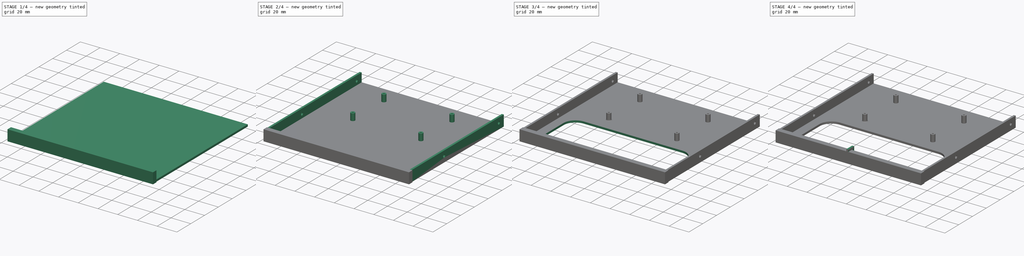
[diagram: build sequence overview — one tinted view per stage of 4, left to right]
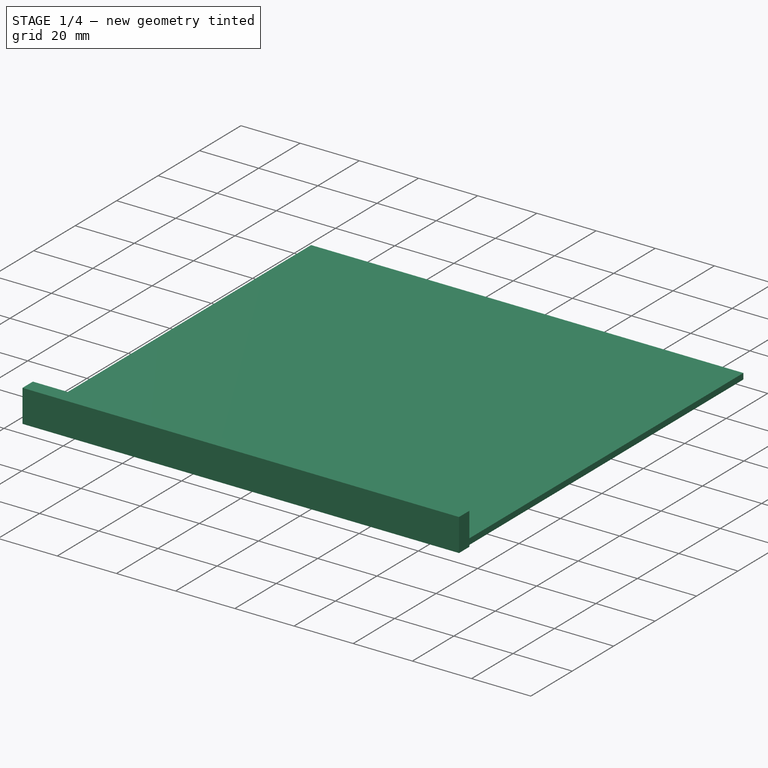
[diagram: stage 1 of 4 — iso view after this stage's code; geometry added in this stage tinted green]
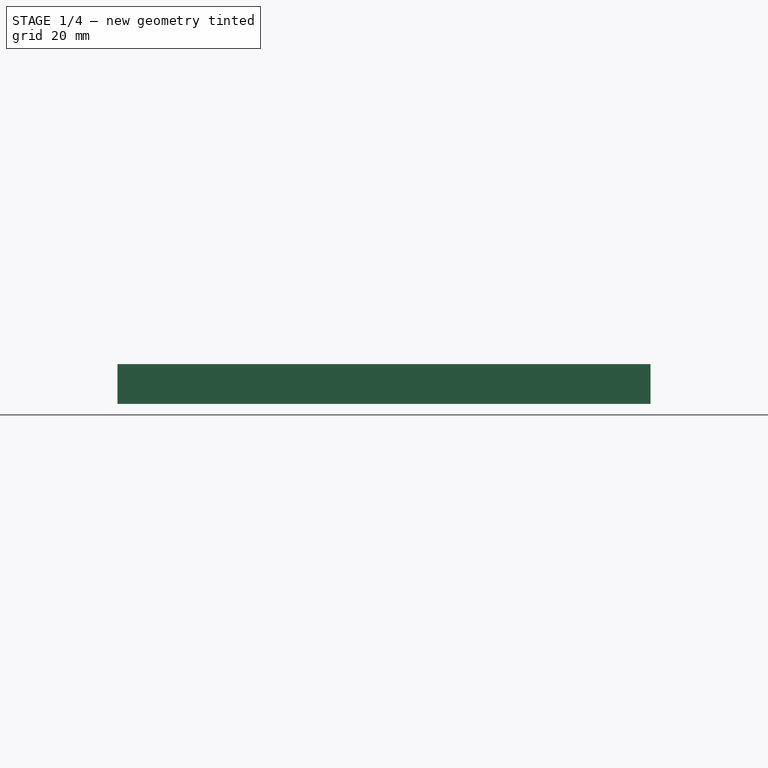
[diagram: stage 1 of 4 — front view after this stage's code; geometry added in this stage tinted green]
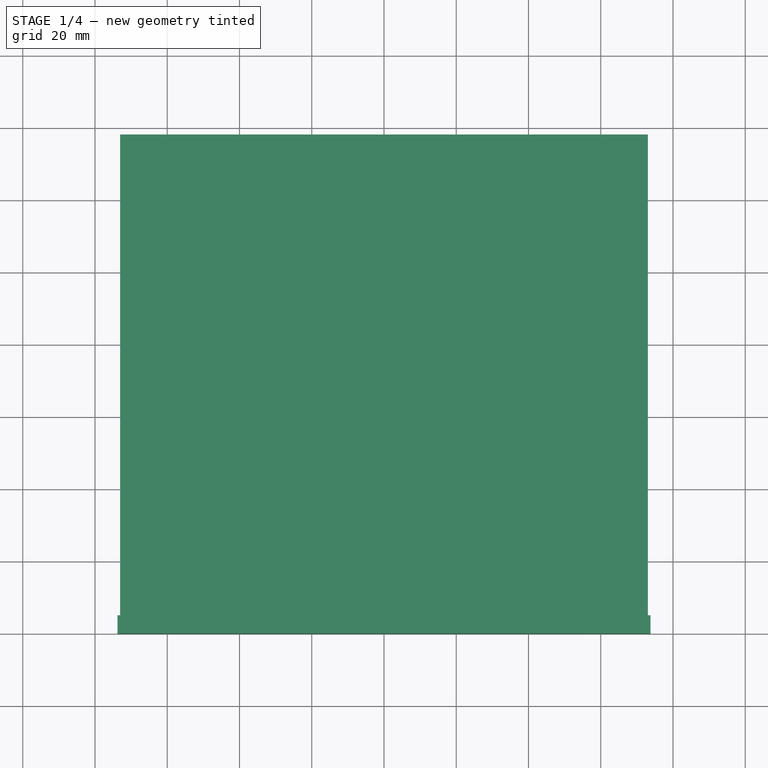
[diagram: stage 1 of 4 — top view after this stage's code; geometry added in this stage tinted green]
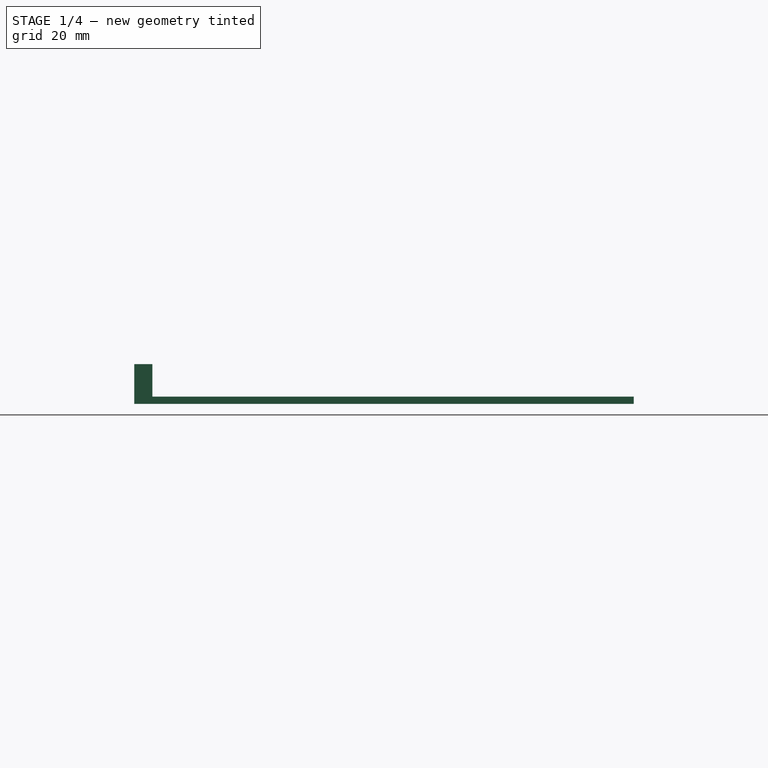
[diagram: stage 1 of 4 — right view after this stage's code; geometry added in this stage tinted green]
FCSTD DOCUMENT  (FreeCAD 1.0R39109 (Git))
Label: Greaseweazle-4_Tray
License: Apache 2
objects: Sketcher::SketchObject×10, PartDesign::Pad×8, PartDesign::Pocket×2, PartDesign::Body×2, Spreadsheet::Sheet×1, PartDesign::Fillet×1, PartDesign::Hole×1
note: 58 computed .brp shape members not serialized (recipe doc carries the construction recipe); baked Part::Feature solids carry a one-line shape summary decoded from their .brp

FEATURE [Spreadsheet::Sheet] Spreadsheet
  cells = A1='Dimensions are from SFF-8500; A2='Dimension; B2='Name; C2='Value; D2='Notes; A3='A1; C3=82.55; D3='Full Height; B4='height; C4(height)==rail_height; D4='Low profile; A5='A5; B5='width; C5(width)=146.05; D5='Width; B6='hole_diameter; C6(hole_diameter)=3; D6='Mounting hole diameter; A7='A11; B7='hole_separation; C7(hole_separation)=79.24; D7='Horizontal distance between mounting hole centers; A8='A13; B8='lower_hole_voffset; C8(lower_hole_voffset)=6; D8='Lower mounting hole vertical offset from XY plane; A9='A14; B9='upper_hole_voffset; C9(upper_hole_voffset)=6; D9='Upper mounting hole vertical offset from XY plane; B10='hole_bezel_hoffset; C10(hole_bezel_hoffset)=52; D10='Offset from front of bezel to forward mounting hole, measured from 5.25" floppy; B11='bezel_edge_depth; C11(bezel_edge_depth)=5; D11='Thickness of the bevel; B12='bezel_face_depth; C12(bezel_face_depth)=3; D12='Thickness of bezel face pocket in the center; B13='bezel_edge_width; C13(bezel_face_width)=2.5; D13='thickness of the bezel edge; B14='tray_height; C14(tray_height)=2; D14='thickness of the greaseweazle mounting tray; B15='rail_width; C15(rail_width)=2; D15='thickness of the rails for the mounting holes; B16='rail_height; C16(rail_height)==upper_hole_voffset + hole_diameter + 2; D16='height of mounting rail = upper hole offset + hole_diameter + 4mm; B17='rail_depth; C17(rail_depth)==hole_separation + hole_bezel_hoffset + hole_diameter + 4; D17='depth of mounting rail = hole separation + bezel_hole_offset + hole_diameter + 4mm; B18='bezel_width; C18(bezel_width)=147.5; D18='width of bezel; B19='tray_depth; C19(tray_depth)==rail_depth + 0; D19='depth of the tray, including the bezel = rail_depth + 0mm; B21='gw_boss_dia; C21(gw_boss_dia)==2.5 * gw_hole_dia; D21='Mounting boss for greaseweazle = 2.5x the hole diameter; B22='gw_hole_dia; C22(gw_hole_dia)=1.7; D22='Screw hole for greaseweazle; B23='gw_hole_y_dist; C23(gw_hole_y_dist)=45; B24='gw_hole_x_dist; C24(gw_hole_x_dist)=69; B25='gw_rear_offset; C25(gw_rear_offset)==rail_depth - 20; D25='Offset of GW relative to rail length; B26='gw_boss_height; C26(gw_boss_height)=7; D26='Height of mounting boss; B28='mat_hole_depth; C28(mat_hole_depth)=25; B29='mat_hole_width; C29(mat_hole_width)=100; B30='mat_hole_y_offset; C30(mat_hole_y_offset)=10; B31='mat_hole_radius; C31(mat_hole_radius)=12; D31='radius of rounded corners on the mat hole
FEATURE [Sketcher::SketchObject] Sketch
  ArcFitTolerance = 1e-06
  AttachmentSupport = -> [XY_Plane]
  FullyConstrained = true
  MakeInternals = false
  MapMode = 5
  expr: Constraints[8] = Spreadsheet.width
  expr: Constraints[9] = Spreadsheet.tray_depth
  sketch-geometry (4):
    g0: LineSegment StartX=-73.025 StartY=0 StartZ=0 EndX=73.025 EndY=-3e-16 EndZ=0
    g1: LineSegment StartX=-73.025 StartY=138.24 StartZ=0 EndX=73.025 EndY=138.24 EndZ=0
    g2: LineSegment StartX=-73.025 StartY=0 StartZ=0 EndX=-73.025 EndY=138.24 EndZ=0
    g3: LineSegment StartX=73.025 StartY=-3e-16 StartZ=0 EndX=73.025 EndY=138.24 EndZ=0
  constraints (11):
    c: Symmetric(g0,g0,g-2)
    c: Coincident(g2,g0)
    c: Coincident(g2,g1)
    c: Coincident(g3,g0)
    c: Coincident(g3,g1)
    c: Vertical(g2)
    c: Vertical(g3)
    c: Horizontal(g1)
    c: DistanceX(g0,g0) = 146.05
    c: DistanceY(g2,g2) = 138.24
    c: PointOnObject(g0,g-1)
FEATURE [PartDesign::Pad] Pad
  Direction = (0,0,1)
  Length = 2
  Length2 = 10
  Profile = -> Sketch
  ReferenceAxis = -> Sketch [N_Axis]
  Refine = true
  Suppressed = false
  Type = 0
  expr: Length = Spreadsheet.tray_height
FEATURE [Sketcher::SketchObject] Sketch001
  ArcFitTolerance = 1e-06
  AttachmentSupport = -> [Pad]
  FullyConstrained = true
  MakeInternals = false
  MapMode = 5
  Placement = pos=(0,-2e-16,0) rot=(1,0,0;1.5708rad)
  expr: Constraints[8] = Spreadsheet.bezel_width
  expr: Constraints[9] = Spreadsheet.height
  sketch-geometry (4):
    g0: LineSegment StartX=-73.75 StartY=0 StartZ=0 EndX=73.75 EndY=0 EndZ=0
    g1: LineSegment StartX=-73.75 StartY=0 StartZ=0 EndX=-73.75 EndY=11 EndZ=0
    g2: LineSegment StartX=-73.75 StartY=11 StartZ=0 EndX=73.75 EndY=11 EndZ=0
    g3: LineSegment StartX=73.75 StartY=11 StartZ=0 EndX=73.75 EndY=0 EndZ=0
  constraints (11):
    c: Symmetric(g0,g0,g-2)
    c: Coincident(g1,g0)
    c: Vertical(g1)
    c: Horizontal(g2)
    c: Coincident(g3,g2)
    c: Coincident(g3,g0)
    c: Vertical(g3)
    c: PointOnObject(g0,g-1)
    c: DistanceX(g0,g0) = 147.5
    c: DistanceY(g1,g1) = 11
    c: Coincident(g1,g2)
FEATURE [PartDesign::Pad] Pad001
  BaseFeature = -> Pad
  Direction = (0,-1,0)
  Length = 5
  Length2 = 10
  Profile = -> Sketch001
  ReferenceAxis = -> Sketch001 [N_Axis]
  Refine = true
  Reversed = true
  Suppressed = false
  Type = 0
  UseCustomVector = true
  expr: Length = Spreadsheet.bezel_edge_depth
FEATURE [Sketcher::SketchObject] Sketch002
  ArcFitTolerance = 1e-06
  AttachmentSupport = -> [Pad001]
  FullyConstrained = true
  MakeInternals = false
  MapMode = 5
  Placement = pos=(0,5,0) rot=(0,0.707107,0.707107;3.14159rad)
  expr: Constraints[10] = (Spreadsheet.height - (Spreadsheet.height - 2 * Spreadsheet.bezel_edge_depth)) / 2
  expr: Constraints[8] = Spreadsheet.bezel_width - Spreadsheet.bezel_face_width * 2
  expr: Constraints[9] = Spreadsheet.height - 2 * Spreadsheet.bezel_edge_depth
  sketch-geometry (4):
    g0: LineSegment StartX=-71.25 StartY=6 StartZ=0 EndX=-71.25 EndY=5 EndZ=0
    g1: LineSegment StartX=-71.25 StartY=5 StartZ=0 EndX=71.25 EndY=5 EndZ=0
    g2: LineSegment StartX=71.25 StartY=5 StartZ=0 EndX=71.25 EndY=6 EndZ=0
    g3: LineSegment StartX=71.25 StartY=6 StartZ=0 EndX=-71.25 EndY=6 EndZ=0
  constraints (11):
    c: Coincident(g0,g1)
    c: Coincident(g1,g2)
    c: Coincident(g2,g3)
    c: Coincident(g3,g0)
    c: Vertical(g0)
    c: Vertical(g2)
    c: Horizontal(g3)
    c: Symmetric(g0,g1,g-2)
    c: DistanceX(g3,g3) = 142.5
    c: DistanceY(g0,g0) = 1
    c: Distance(g-1,g1) = 5
FEATURE [PartDesign::Pocket] Pocket
  BaseFeature = -> Pad001
  Direction = (0,-1,2e-16)
  Length = 3
  Length2 = 5
  Profile = -> Sketch002
  ReferenceAxis = -> Sketch002 [N_Axis]
  Refine = true
  Suppressed = false
  Type = 0
  expr: Length = Spreadsheet.bezel_face_depth
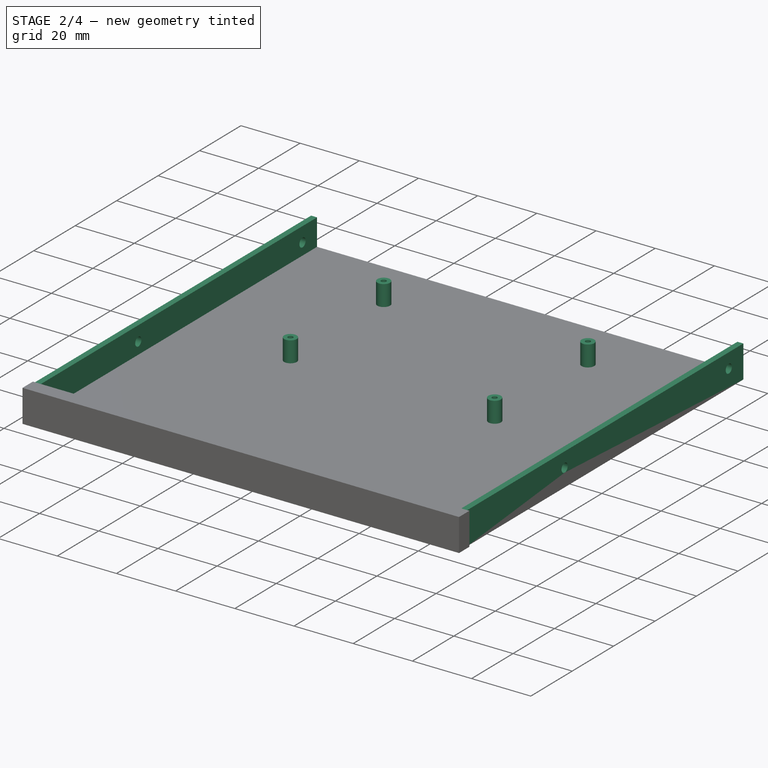
[diagram: stage 2 of 4 — iso view after this stage's code; geometry added in this stage tinted green]
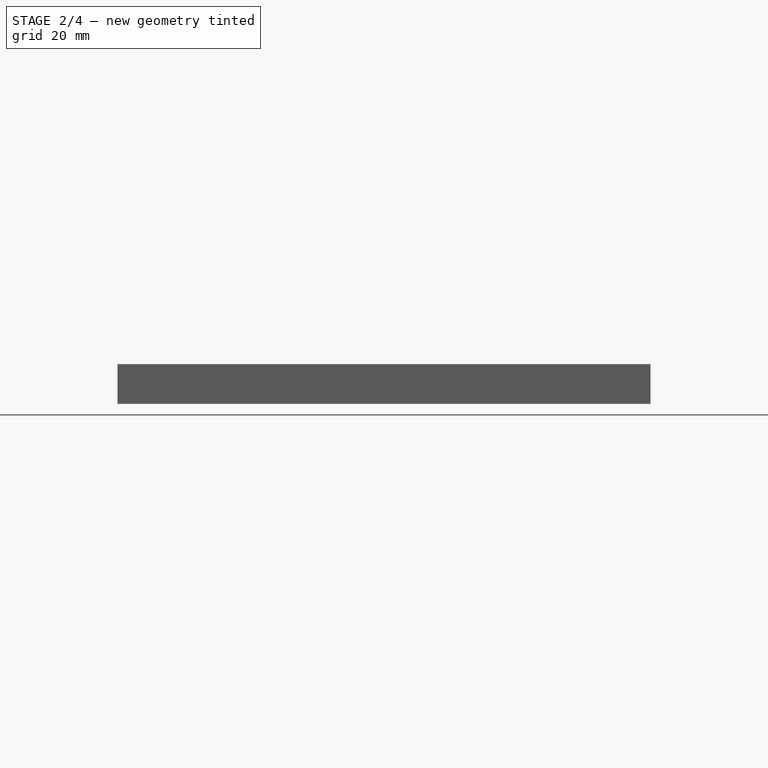
[diagram: stage 2 of 4 — front view after this stage's code; geometry added in this stage tinted green]
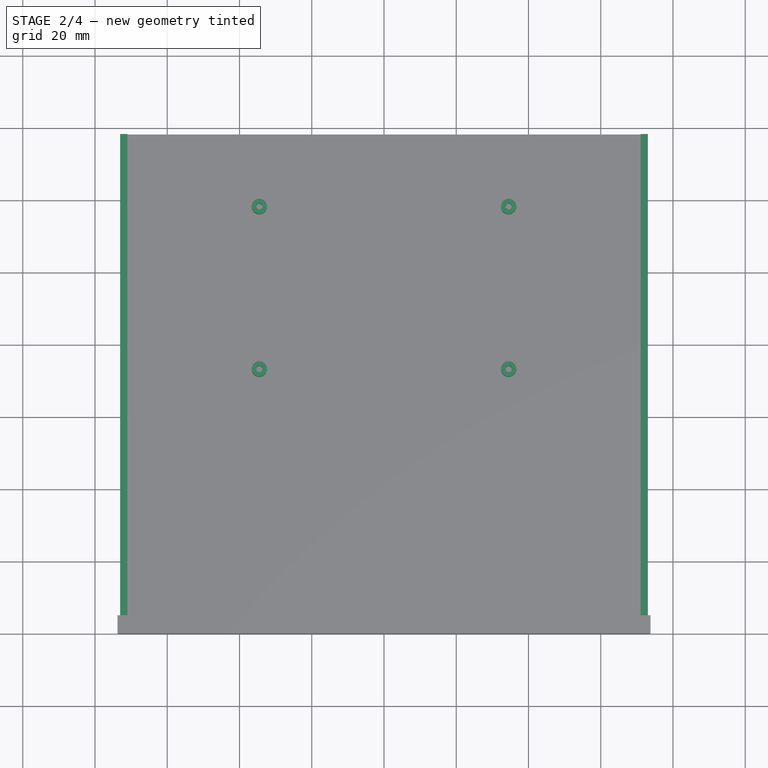
[diagram: stage 2 of 4 — top view after this stage's code; geometry added in this stage tinted green]
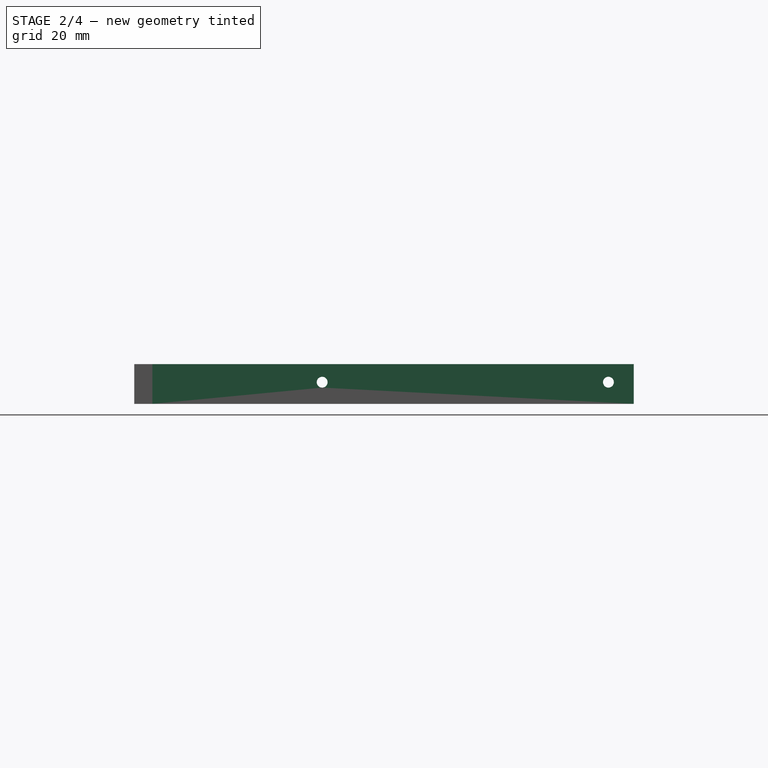
[diagram: stage 2 of 4 — right view after this stage's code; geometry added in this stage tinted green]
FEATURE [Sketcher::SketchObject] Sketch003
  ArcFitTolerance = 1e-06
  AttachmentSupport = -> [Pocket]
  FullyConstrained = true
  MakeInternals = false
  MapMode = 5
  Placement = pos=(73.025,0,0) rot=(0.57735,0.57735,0.57735;2.0944rad)
  expr: Constraints[10] = Spreadsheet.rail_height
  expr: Constraints[11] = Spreadsheet.hole_bezel_hoffset
  expr: Constraints[12] = Spreadsheet.hole_separation
  expr: Constraints[13] = Spreadsheet.upper_hole_voffset
  expr: Constraints[14] = Spreadsheet.hole_diameter
  expr: Constraints[9] = Spreadsheet.rail_depth
  sketch-geometry (6):
    g0: LineSegment StartX=0 StartY=0 StartZ=0 EndX=138.24 EndY=0 EndZ=0
    g1: LineSegment StartX=138.24 StartY=0 StartZ=0 EndX=138.24 EndY=11 EndZ=0
    g2: LineSegment StartX=138.24 StartY=11 StartZ=0 EndX=0 EndY=11 EndZ=0
    g3: LineSegment StartX=0 StartY=11 StartZ=0 EndX=0 EndY=0 EndZ=0
    g4: Circle CenterX=52 CenterY=6 CenterZ=0 NormalX=0 NormalY=0 NormalZ=1 AngleXU=0 Radius=1.5
    g5: Circle CenterX=131.24 CenterY=6 CenterZ=0 NormalX=0 NormalY=0 NormalZ=1 AngleXU=0 Radius=1.5
  constraints (17):
    c: Coincident(g0,g1)
    c: Coincident(g1,g2)
    c: Coincident(g2,g3)
    c: Coincident(g3,g0)
    c: Horizontal(g0)
    c: Horizontal(g2)
    c: Vertical(g1)
    c: Vertical(g3)
    c: Coincident(g0,g-1)
    c: DistanceX(g2,g2) = 138.24
    c: Distance(g1,g1) = 11
    c: Distance(g4,g-2) = 52
    c: DistanceX(g4,g5) = 79.24
    c: Distance(g4,g0) = 6
    c: Diameter(g5) = 3
    c: Equal(g5,g4)
    c: Horizontal(g4,g5)
FEATURE [PartDesign::Pad] Pad002
  BaseFeature = -> Pocket
  Direction = (1,0,0)
  Length = 2
  Length2 = 10
  Profile = -> Sketch003
  ReferenceAxis = -> Sketch003 [N_Axis]
  Refine = true
  Reversed = true
  Suppressed = false
  Type = 0
  expr: Length = Spreadsheet.rail_width
FEATURE [Sketcher::SketchObject] Sketch004
  ArcFitTolerance = 1e-06
  AttachmentSupport = -> [Pad002]
  FullyConstrained = true
  MakeInternals = false
  MapMode = 5
  Placement = pos=(-73.025,0,0) rot=(0.57735,-0.57735,-0.57735;2.0944rad)
  expr: Constraints[10] = Spreadsheet.hole_diameter
  expr: Constraints[12] = Spreadsheet.upper_hole_voffset
  expr: Constraints[13] = Spreadsheet.rail_height
  expr: Constraints[14] = Spreadsheet.hole_separation
  expr: Constraints[15] = Spreadsheet.rail_depth
  expr: Constraints[16] = Spreadsheet.hole_bezel_hoffset
  sketch-geometry (6):
    g0: LineSegment StartX=0 StartY=0 StartZ=0 EndX=0 EndY=11 EndZ=0
    g1: LineSegment StartX=0 StartY=11 StartZ=0 EndX=-138.24 EndY=11 EndZ=0
    g2: LineSegment StartX=-138.24 StartY=11 StartZ=0 EndX=-138.24 EndY=0 EndZ=0
    g3: LineSegment StartX=-138.24 StartY=0 StartZ=0 EndX=0 EndY=0 EndZ=0
    g4: Circle CenterX=-131.24 CenterY=6 CenterZ=0 NormalX=0 NormalY=0 NormalZ=1 AngleXU=0 Radius=1.5
    g5: Circle CenterX=-52 CenterY=6 CenterZ=0 NormalX=0 NormalY=0 NormalZ=1 AngleXU=0 Radius=1.5
  constraints (17):
    c: Coincident(g0,g1)
    c: Coincident(g1,g2)
    c: Coincident(g2,g3)
    c: Coincident(g3,g0)
    c: Vertical(g0)
    c: Vertical(g2)
    c: Horizontal(g1)
    c: Horizontal(g3)
    c: Coincident(g0,g-1)
    c: Horizontal(g5,g4)
    c: Diameter(g4) = 3
    c: Equal(g4,g5)
    c: Distance(g4,g-1) = 6
    c: Distance(g2,g2) = 11
    c: DistanceX(g4,g5) = 79.24
    c: DistanceX(g1,g1) = 138.24
    c: DistanceX(g5,g-1) = 52
FEATURE [PartDesign::Pad] Pad003
  BaseFeature = -> Pad002
  Direction = (-1,0,0)
  Length = 2
  Length2 = 10
  Profile = -> Sketch004
  ReferenceAxis = -> Sketch004 [N_Axis]
  Refine = true
  Reversed = true
  Suppressed = false
  Type = 0
  expr: Length = Spreadsheet.rail_width
FEATURE [Sketcher::SketchObject] Sketch005
  ArcFitTolerance = 1e-06
  AttachmentSupport = -> [Pad003]
  FullyConstrained = true
  MakeInternals = false
  MapMode = 5
  Placement = pos=(0,0,2) rot=(0,0,1;0rad)
  expr: Constraints[0] = Spreadsheet.gw_hole_x_dist
  expr: Constraints[16] = Spreadsheet.gw_hole_dia
  expr: Constraints[18] = Spreadsheet.gw_rear_offset
  expr: Constraints[1] = Spreadsheet.gw_hole_y_dist
  expr: Constraints[5] = Spreadsheet.gw_boss_dia
  sketch-geometry (8):
    g0: Circle CenterX=-34.5 CenterY=118.24 CenterZ=0 NormalX=0 NormalY=0 NormalZ=1 AngleXU=0 Radius=2.125
    g1: Circle CenterX=34.5 CenterY=118.24 CenterZ=0 NormalX=0 NormalY=0 NormalZ=1 AngleXU=0 Radius=2.125
    g2: Circle CenterX=-34.5 CenterY=73.24 CenterZ=0 NormalX=0 NormalY=0 NormalZ=1 AngleXU=0 Radius=2.125
    g3: Circle CenterX=34.5 CenterY=73.24 CenterZ=0 NormalX=0 NormalY=0 NormalZ=1 AngleXU=0 Radius=2.125
    g4: Circle CenterX=-34.5 CenterY=73.24 CenterZ=0 NormalX=0 NormalY=0 NormalZ=1 AngleXU=0 Radius=0.85
    g5: Circle CenterX=-34.5 CenterY=118.24 CenterZ=0 NormalX=0 NormalY=0 NormalZ=1 AngleXU=0 Radius=0.85
    g6: Circle CenterX=34.5 CenterY=118.24 CenterZ=0 NormalX=0 NormalY=0 NormalZ=1 AngleXU=0 Radius=0.85
    g7: Circle CenterX=34.5 CenterY=73.24 CenterZ=0 NormalX=0 NormalY=0 NormalZ=1 AngleXU=0 Radius=0.85
  constraints (19):
    c: DistanceX(g0,g1) = 69
    c: DistanceY(g2,g0) = 45
    c: Horizontal(g0,g1)
    c: Vertical(g0,g2)
    c: Vertical(g1,g3)
    c: Diameter(g0) = 4.25
    c: Equal(g0,g1)
    c: Equal(g0,g2)
    c: Equal(g0,g3)
    c: Coincident(g4,g2)
    c: Coincident(g5,g0)
    c: Coincident(g6,g1)
    c: Coincident(g7,g3)
    c: Equal(g5,g4)
    c: Equal(g5,g6)
    c: Equal(g5,g7)
    c: Diameter(g5) = 1.7
    c: Symmetric(g2,g3,g-2)
    c: DistanceY(g-1,g0) = 118.24
FEATURE [PartDesign::Pad] Pad004
  BaseFeature = -> Pad003
  Direction = (0,0,1)
  Length = 7
  Length2 = 10
  Profile = -> Sketch005
  ReferenceAxis = -> Sketch005 [N_Axis]
  Refine = true
  Suppressed = false
  Type = 0
  expr: Length = Spreadsheet.gw_boss_height
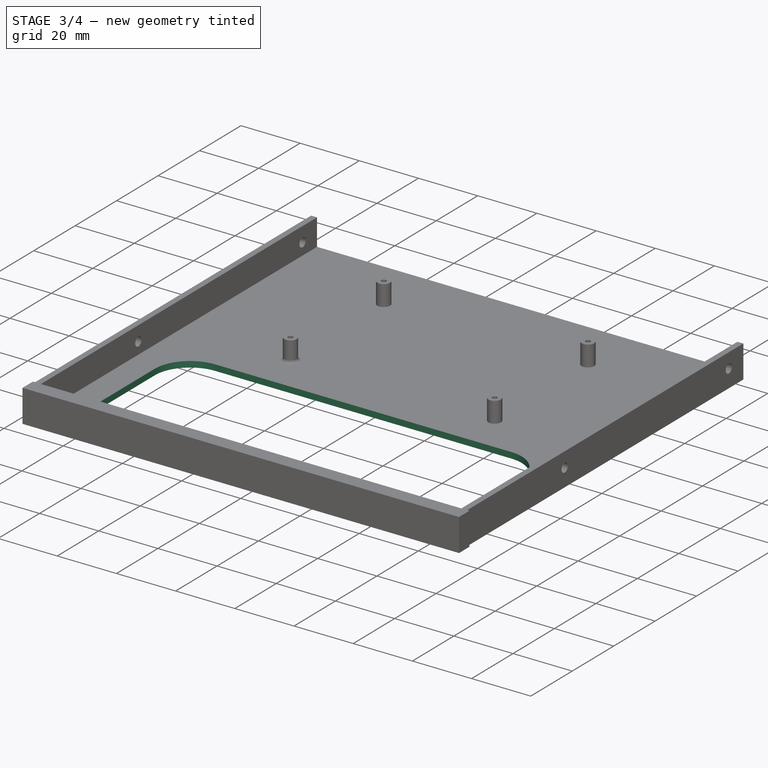
[diagram: stage 3 of 4 — iso view after this stage's code; geometry added in this stage tinted green]
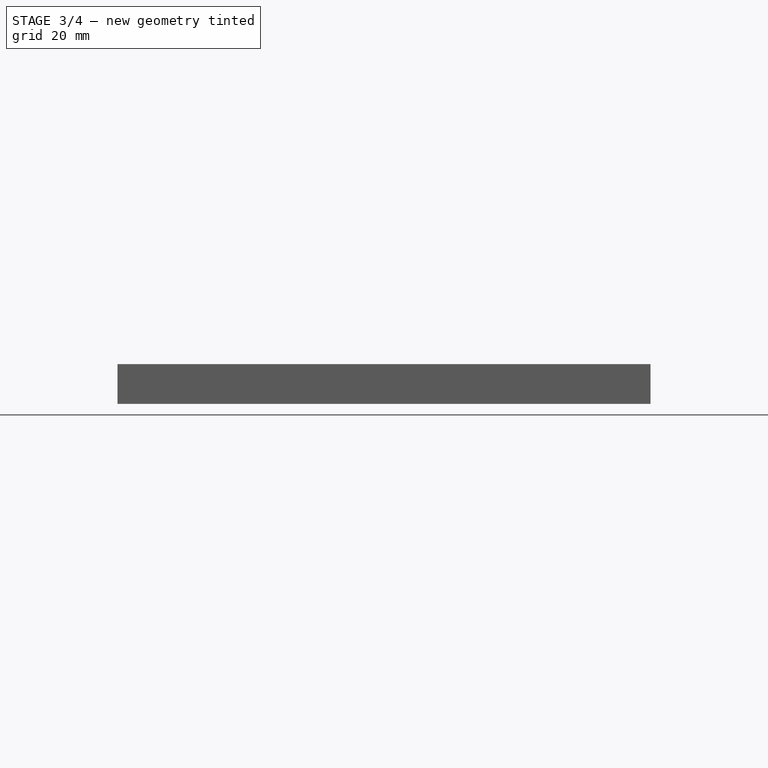
[diagram: stage 3 of 4 — front view after this stage's code; geometry added in this stage tinted green]
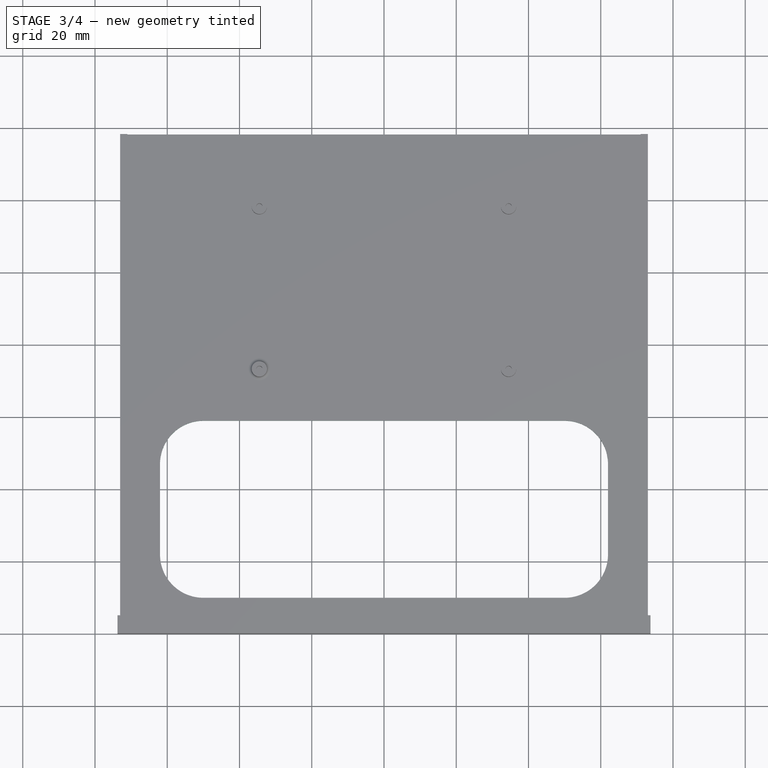
[diagram: stage 3 of 4 — top view after this stage's code; geometry added in this stage tinted green]
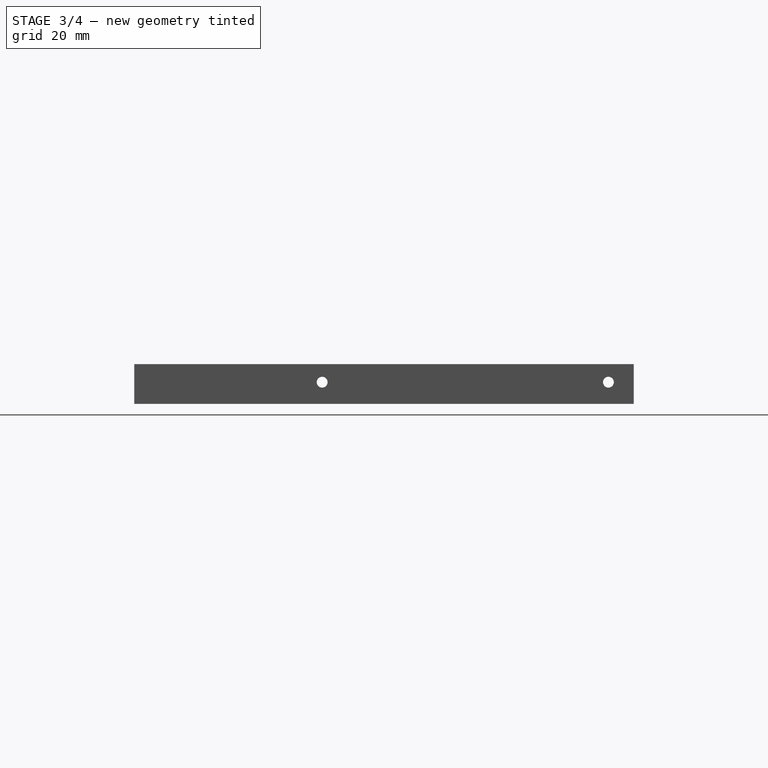
[diagram: stage 3 of 4 — right view after this stage's code; geometry added in this stage tinted green]
FEATURE [Sketcher::SketchObject] Sketch006
  ArcFitTolerance = 1e-06
  AttachmentSupport = -> [Pad004]
  FullyConstrained = true
  MakeInternals = false
  MapMode = 5
  Placement = pos=(0,0,2) rot=(0,0,1;0rad)
  expr: Constraints[19] = Spreadsheet.mat_hole_radius
  expr: Constraints[20] = Spreadsheet.mat_hole_depth
  expr: Constraints[21] = Spreadsheet.mat_hole_width
  expr: Constraints[22] = Spreadsheet.mat_hole_y_offset
  sketch-geometry (10):
    g0: LineSegment StartX=-62 StartY=47 StartZ=0 EndX=-62 EndY=22 EndZ=0
    g1: LineSegment StartX=-50 StartY=10 StartZ=0 EndX=50 EndY=10 EndZ=0
    g2: LineSegment StartX=62 StartY=22 StartZ=0 EndX=62 EndY=47 EndZ=0
    g3: LineSegment StartX=50 StartY=59 StartZ=0 EndX=-50 EndY=59 EndZ=0
    g4: ArcOfCircle CenterX=-50 CenterY=47 CenterZ=0 NormalX=0 NormalY=0 NormalZ=1 AngleXU=0 Radius=12 StartAngle=1.5708 EndAngle=3.14159
    g5: ArcOfCircle CenterX=-50 CenterY=22 CenterZ=0 NormalX=0 NormalY=0 NormalZ=1 AngleXU=0 Radius=12 StartAngle=3.14159 EndAngle=4.71239
    g6: ArcOfCircle CenterX=50 CenterY=22 CenterZ=0 NormalX=0 NormalY=0 NormalZ=1 AngleXU=0 Radius=12 StartAngle=4.71239 EndAngle=6.28319
    g7: ArcOfCircle CenterX=50 CenterY=47 CenterZ=0 NormalX=0 NormalY=0 NormalZ=1 AngleXU=0 Radius=12 StartAngle=0 EndAngle=1.5708
    g8: GeomPoint [constr] X=-62 Y=59 Z=0
    g9: GeomPoint [constr] X=62 Y=10 Z=0
  constraints (23):
    c: Tangent(g0,g4) = -1.5708
    c: Tangent(g0,g5) = -1.5708
    c: Tangent(g1,g5) = -1.5708
    c: Tangent(g1,g6) = -1.5708
    c: Tangent(g2,g6) = -1.5708
    c: Tangent(g2,g7) = -1.5708
    c: Tangent(g3,g7) = -1.5708
    c: Tangent(g3,g4) = -1.5708
    c: Vertical(g0)
    c: Vertical(g2)
    c: Horizontal(g1)
    c: Horizontal(g3)
    c: Equal(g4,g5)
    c: Equal(g5,g6)
    c: PointOnObject(g8,g0)
    c: PointOnObject(g8,g3)
    c: PointOnObject(g9,g1)
    c: PointOnObject(g9,g2)
    c: Symmetric(g4,g7,g-2)
    c: Radius(g4) = 12
    c: DistanceY(g0,g0) = 25
    c: DistanceX(g1,g1) = 100
    c: Distance(g-1,g1) = 10
FEATURE [PartDesign::Pocket] Pocket001
  BaseFeature = -> Pad004
  Direction = (0,0,-1)
  Length = 2
  Length2 = 5
  Profile = -> Sketch006
  ReferenceAxis = -> Sketch006 [N_Axis]
  Refine = true
  Suppressed = false
  Type = 0
  expr: Length = Spreadsheet.tray_height
FEATURE [PartDesign::Fillet] Fillet
  Base = -> Pocket001 [Edge80]
  BaseFeature = -> Pocket001
  Radius = 1
  Refine = true
  SupportTransform = false
  Suppressed = false
  UseAllEdges = false
FEATURE [PartDesign::Body] Body001  label="HoleTest"
  AllowCompound = false
  Group = -> [Sketch007,Pad005,Sketch008,Pad006,Sketch009,Pad007]
  Origin = -> Origin001
  Tip = -> Pad007
FEATURE [PartDesign::Hole] Hole
  BaseFeature = -> Fillet
  CustomThreadClearance = 0
  Depth = 25
  DepthType = 0
  Diameter = 3
  DrillForDepth = false
  DrillPoint = 1
  DrillPointAngle = 118
  HoleCutCountersinkAngle = 90
  HoleCutCustomValues = false
  HoleCutDepth = 0
  HoleCutDiameter = 6.1
  HoleCutType = 0
  ModelThread = false
  Profile = -> Sketch003
  Refine = true
  Suppressed = false
  Tapered = false
  TaperedAngle = 90
  ThreadClass = 0
  ThreadDepth = 25
  ThreadDepthType = 0
  ThreadDirection = 0
  ThreadFit = 0
  ThreadSize = 0
  ThreadType = 0
  Threaded = false
  UseCustomThreadClearance = false
  expr: Diameter = Spreadsheet.hole_diameter
FEATURE [PartDesign::Body] Body  label="Tray"
  AllowCompound = false
  Group = -> [Sketch,Pad,Sketch001,Pad001,Sketch002,Pocket,Sketch003,Pad002,Sketch004,Pad003,Sketch005,Pad004,Sketch006,Pocket001,Fillet,Hole]
  Origin = -> Origin
  Tip = -> Hole
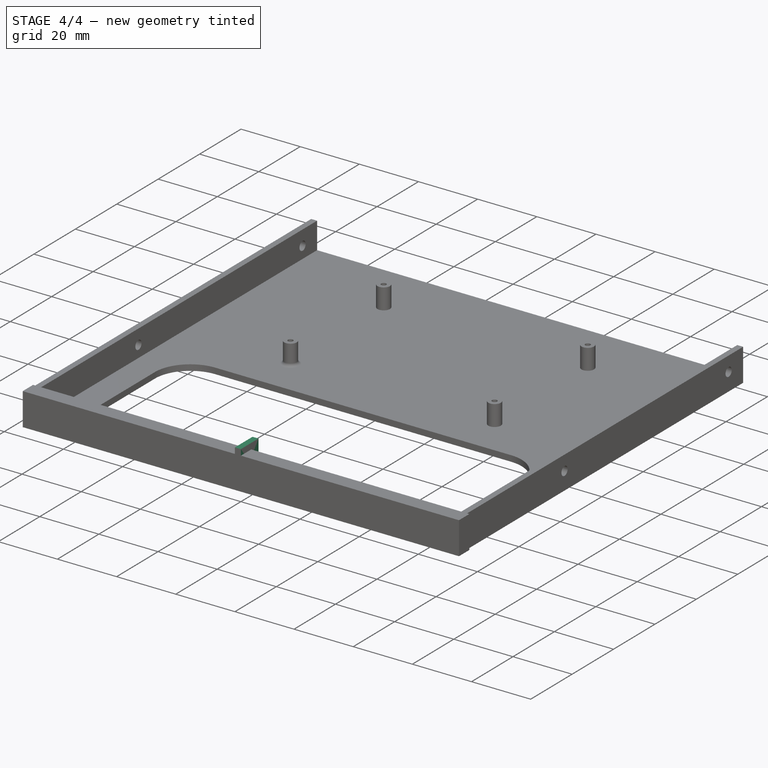
[diagram: stage 4 of 4 — iso view after this stage's code; geometry added in this stage tinted green]
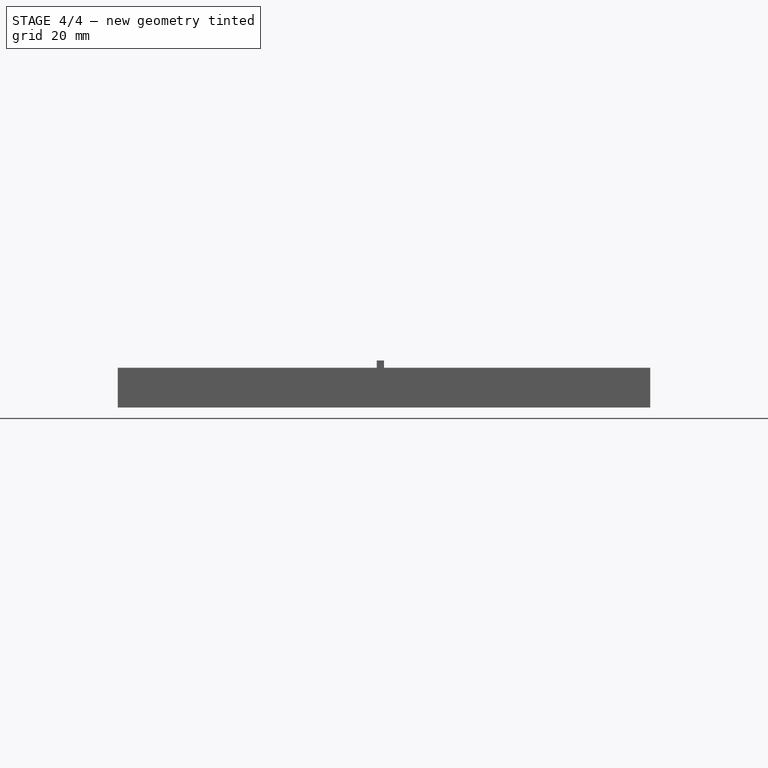
[diagram: stage 4 of 4 — front view after this stage's code; geometry added in this stage tinted green]
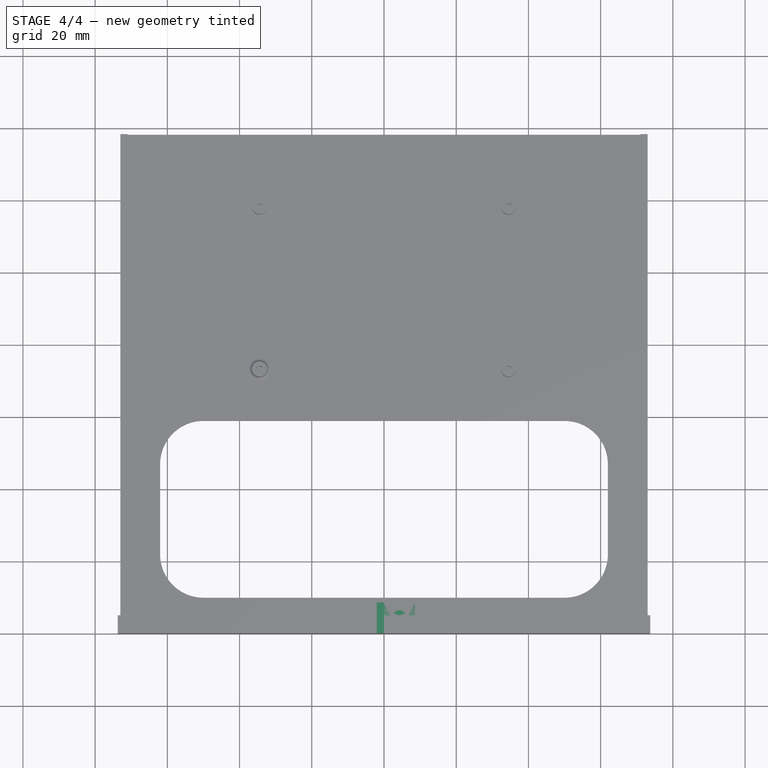
[diagram: stage 4 of 4 — top view after this stage's code; geometry added in this stage tinted green]
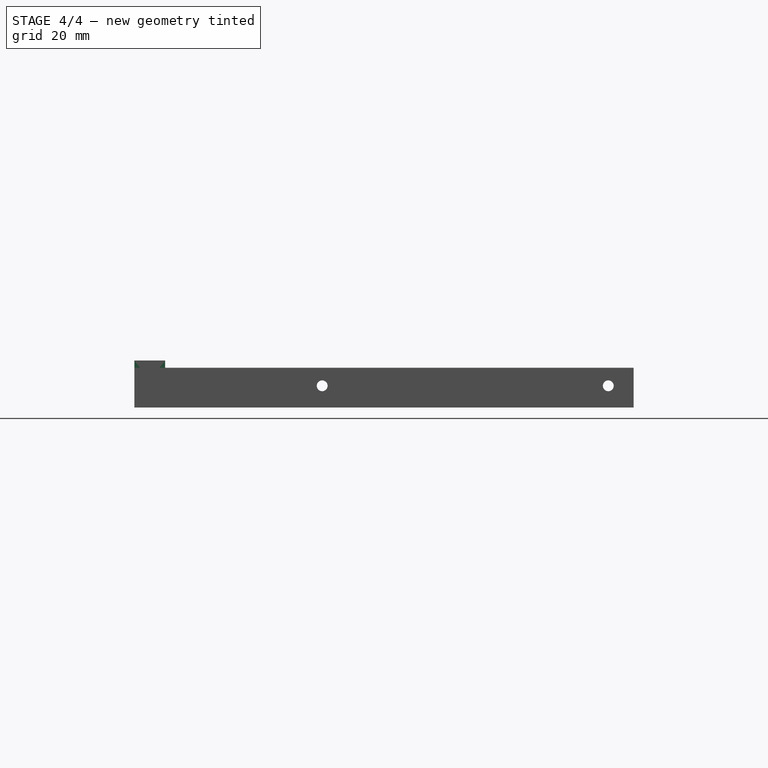
[diagram: stage 4 of 4 — right view after this stage's code; geometry added in this stage tinted green]
FEATURE [Sketcher::SketchObject] Sketch007
  ArcFitTolerance = 1e-06
  AttachmentSupport = -> [XY_Plane001]
  FullyConstrained = true
  MakeInternals = false
  MapMode = 5
  expr: Constraints[9] = Spreadsheet.gw_boss_dia * 2
  sketch-geometry (4):
    g0: LineSegment StartX=0 StartY=0 StartZ=0 EndX=8.5 EndY=0 EndZ=0
    g1: LineSegment StartX=8.5 StartY=0 StartZ=0 EndX=8.5 EndY=8.5 EndZ=0
    g2: LineSegment StartX=8.5 StartY=8.5 StartZ=0 EndX=0 EndY=8.5 EndZ=0
    g3: LineSegment StartX=0 StartY=8.5 StartZ=0 EndX=0 EndY=0 EndZ=0
  constraints (11):
    c: Coincident(g0,g1)
    c: Coincident(g1,g2)
    c: Coincident(g2,g3)
    c: Coincident(g3,g0)
    c: Horizontal(g0)
    c: Horizontal(g2)
    c: Vertical(g1)
    c: Vertical(g3)
    c: Coincident(g0,g-1)
    c: DistanceX(g0,g0) = 8.5
    c: Equal(g0,g3)
FEATURE [PartDesign::Pad] Pad005
  Direction = (0,0,1)
  Length = 2
  Length2 = 10
  Profile = -> Sketch007
  ReferenceAxis = -> Sketch007 [N_Axis]
  Refine = true
  Suppressed = false
  Type = 0
  expr: Length = Spreadsheet.tray_height
FEATURE [Sketcher::SketchObject] Sketch008
  ArcFitTolerance = 1e-06
  AttachmentSupport = -> [Pad005]
  FullyConstrained = true
  MakeInternals = false
  MapMode = 5
  Placement = pos=(0,0,2) rot=(0,0,1;0rad)
  expr: Constraints[1] = Spreadsheet.gw_boss_dia
  expr: Constraints[2] = Spreadsheet.gw_hole_dia
  expr: Constraints[3] = Spreadsheet.gw_boss_dia
  expr: Constraints[4] = Spreadsheet.gw_boss_dia
  sketch-geometry (2):
    g0: Circle CenterX=4.25 CenterY=4.25 CenterZ=0 NormalX=0 NormalY=0 NormalZ=1 AngleXU=0 Radius=2.125
    g1: Circle CenterX=4.25 CenterY=4.25 CenterZ=0 NormalX=0 NormalY=0 NormalZ=1 AngleXU=0 Radius=0.85
  constraints (5):
    c: Coincident(g1,g0)
    c: Diameter(g0) = 4.25
    c: Diameter(g1) = 1.7
    c: Distance(g0,g-2) = 4.25
    c: Distance(g0,g-1) = 4.25
FEATURE [PartDesign::Pad] Pad006
  BaseFeature = -> Pad005
  Direction = (0,0,1)
  Length = 7
  Length2 = 10
  Profile = -> Sketch008
  ReferenceAxis = -> Sketch008 [N_Axis]
  Refine = true
  Suppressed = false
  Type = 0
  expr: Length = Spreadsheet.gw_boss_height
FEATURE [Sketcher::SketchObject] Sketch009
  ArcFitTolerance = 1e-06
  AttachmentSupport = -> [Pad006]
  FullyConstrained = true
  MakeInternals = false
  MapMode = 5
  Placement = pos=(0,0,0) rot=(0.57735,-0.57735,-0.57735;2.0944rad)
  expr: Constraints[10] = Spreadsheet.lower_hole_voffset + Spreadsheet.hole_diameter + 4
  expr: Constraints[11] = Spreadsheet.hole_diameter
  expr: Constraints[12] = Spreadsheet.gw_boss_dia
  expr: Constraints[13] = Spreadsheet.lower_hole_voffset
  expr: Constraints[9] = Spreadsheet.gw_boss_dia * 2
  sketch-geometry (5):
    g0: LineSegment StartX=0 StartY=0 StartZ=0 EndX=0 EndY=13 EndZ=0
    g1: LineSegment StartX=0 StartY=13 StartZ=0 EndX=-8.5 EndY=13 EndZ=0
    g2: LineSegment StartX=-8.5 StartY=13 StartZ=0 EndX=-8.5 EndY=0 EndZ=0
    g3: LineSegment StartX=-8.5 StartY=0 StartZ=0 EndX=0 EndY=0 EndZ=0
    g4: Circle CenterX=-4.25 CenterY=6 CenterZ=0 NormalX=0 NormalY=0 NormalZ=1 AngleXU=0 Radius=1.5
  constraints (14):
    c: Coincident(g0,g1)
    c: Coincident(g1,g2)
    c: Coincident(g2,g3)
    c: Coincident(g3,g0)
    c: Vertical(g0)
    c: Vertical(g2)
    c: Horizontal(g1)
    c: Horizontal(g3)
    c: Coincident(g0,g-1)
    c: DistanceX(g1,g1) = 8.5
    c: DistanceY(g2,g2) = 13
    c: Diameter(g4) = 3
    c: Distance(g4,g0) = 4.25
    c: Distance(g4,g-1) = 6
FEATURE [PartDesign::Pad] Pad007
  BaseFeature = -> Pad006
  Direction = (-1,0,0)
  Length = 2
  Length2 = 10
  Profile = -> Sketch009
  ReferenceAxis = -> Sketch009 [N_Axis]
  Refine = true
  Suppressed = false
  Type = 0
  expr: Length = Spreadsheet.rail_width
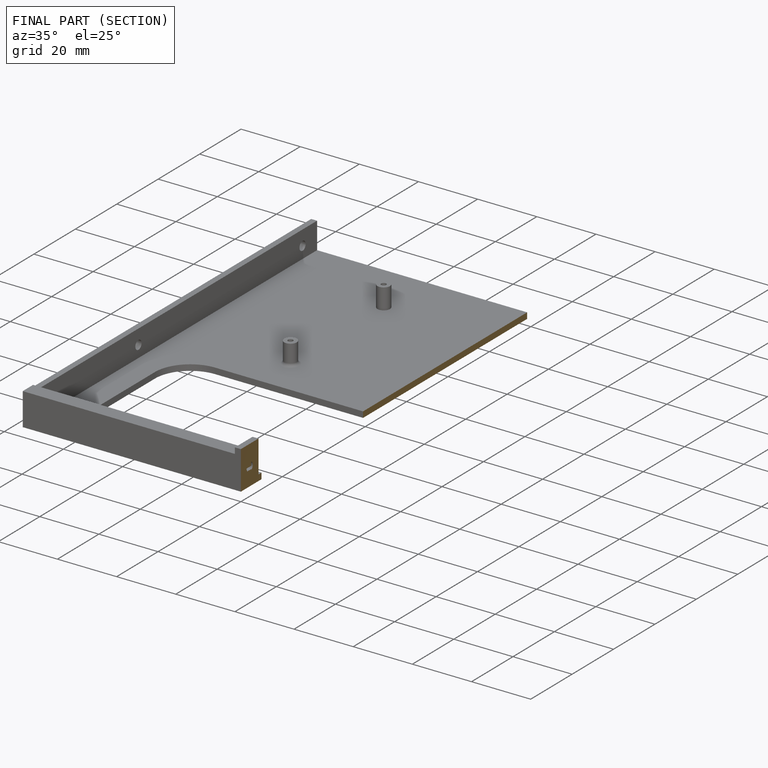
[diagram: finished part — half-section view (interior)]
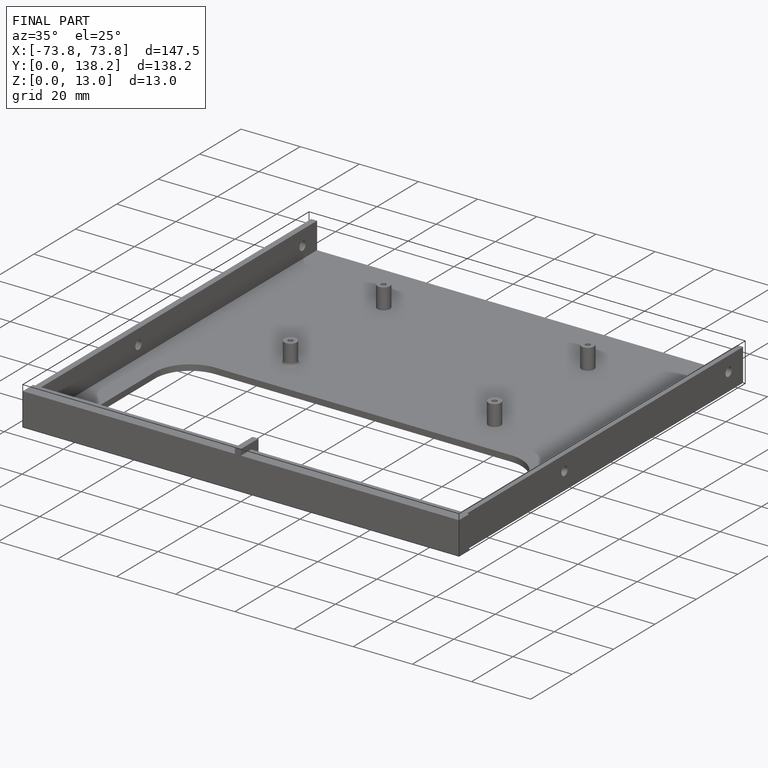
[diagram: finished part — iso view with bounding-box wireframe]
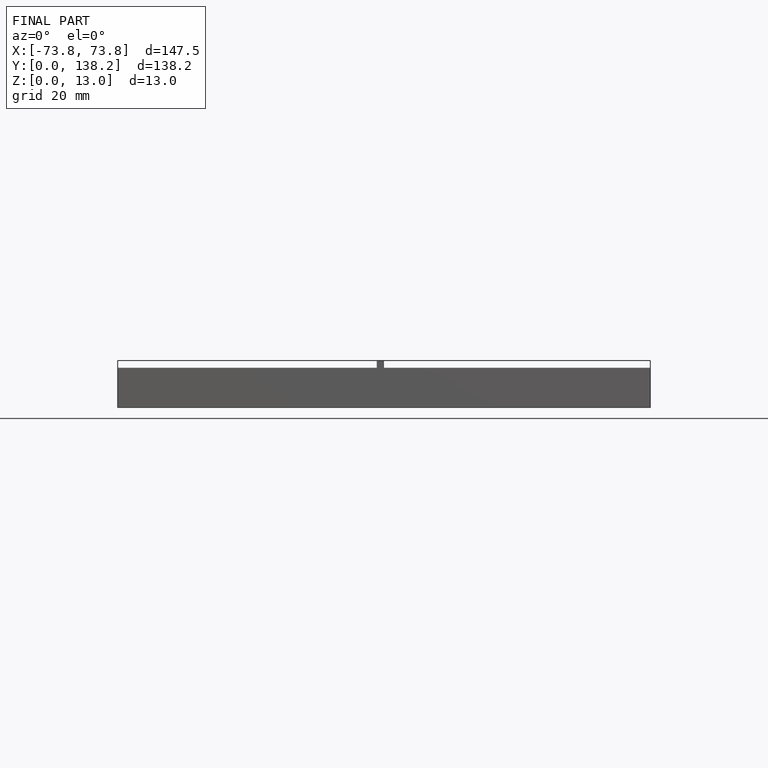
[diagram: finished part — front view with bounding-box wireframe]
